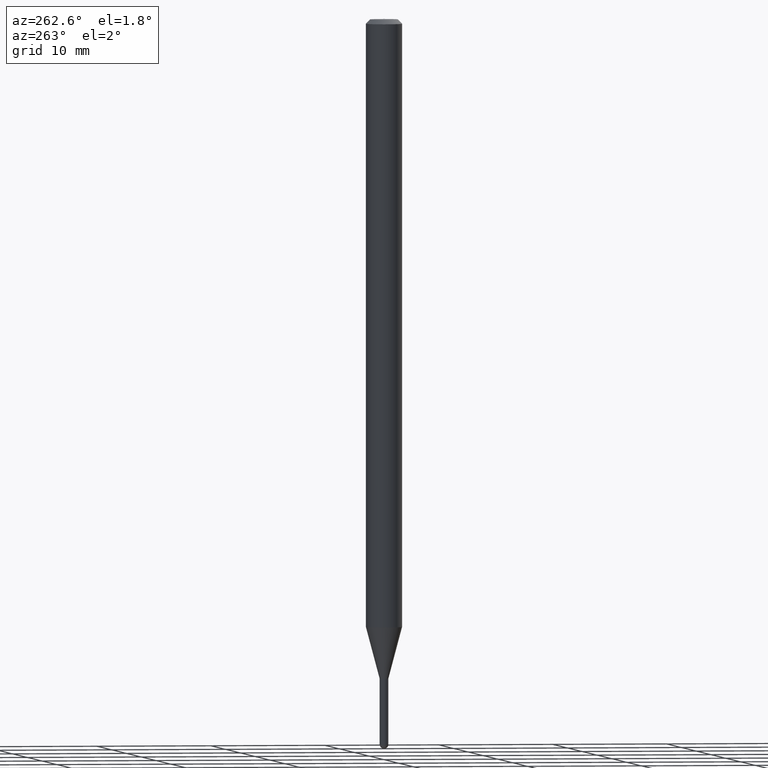
[diagram: clean part render]
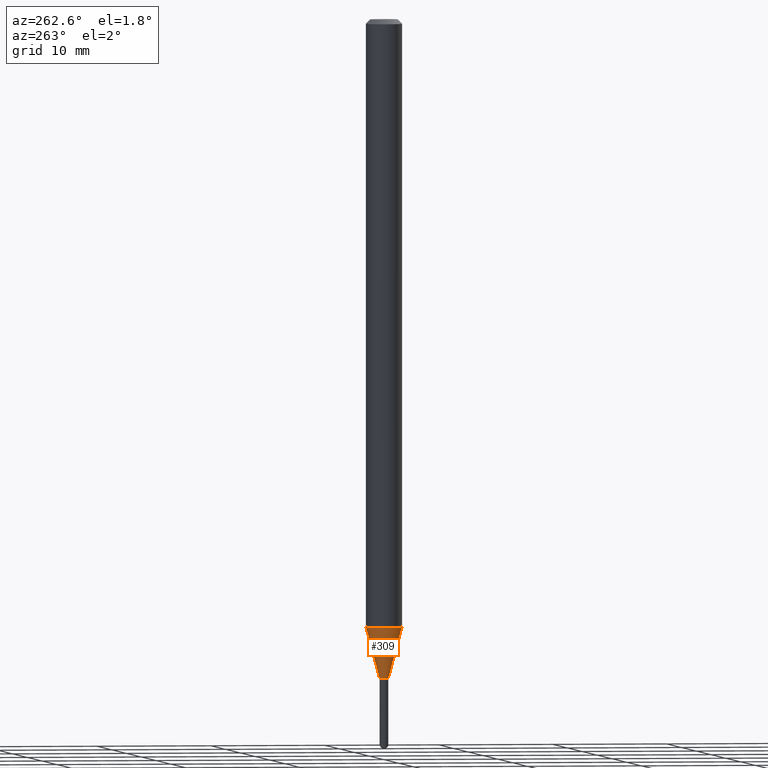
[diagram: same view with one face highlighted and labeled with its STEP entity id]
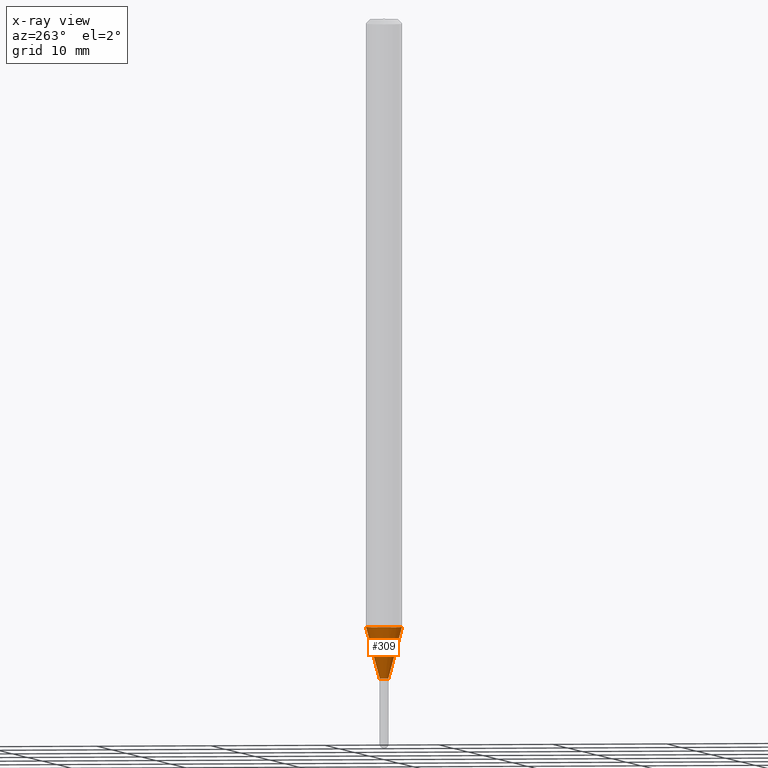
[diagram: x-ray of the same camera — body ghosted, the highlighted face saturated]
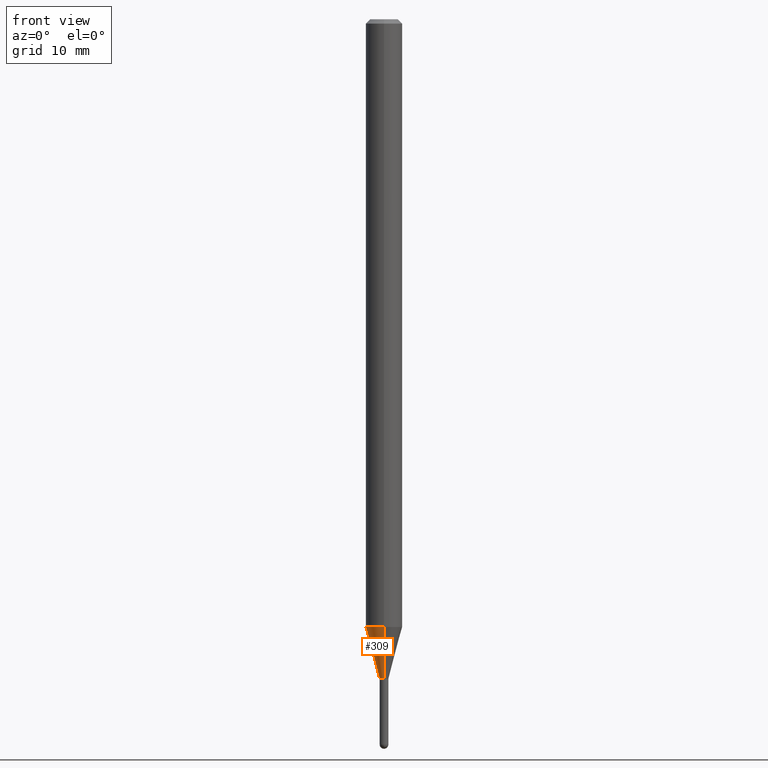
[diagram: same view with one face highlighted and labeled with its STEP entity id]
A machine part, auxiliary view. The second image highlights one B-rep face of the part: STEP entity #309.
The next image is the same camera in x-ray: the body ghosted, the highlighted face saturated — about 0% of this face is hidden behind the body in this view.
A second angle (front view) of the same face is appended — the face is thin or edge-on in the first view.
In plain terms, the highlighted conical surface has half-angle 15 deg.
Its self-contained STEP definition (entity closure, byte-faithful):
#4 = CARTESIAN_POINT ( 'NONE',  ( -4.364351673553408372E-16, -0.06250000000000728584, -2.082727586640484851 ) ) ;
#25 = VECTOR ( 'NONE', #337, 39.37007874015748854 ) ;
#33 = DIRECTION ( 'NONE',  ( -6.982962677686265922E-15, -1.000000000000000000, 4.370956789862821150E-15 ) ) ;
#34 = CIRCLE ( 'NONE', #318, 0.06250000000000000000 ) ;
#46 = DIRECTION ( 'NONE',  ( -2.445532086721361648E-29, 3.491390717513566819E-15, 1.000000000000000000 ) ) ;
#70 = VECTOR ( 'NONE', #265, 39.37007874015748143 ) ;
#86 = FACE_OUTER_BOUND ( 'NONE', #222, .T. ) ;
#107 = AXIS2_PLACEMENT_3D ( 'NONE', #202, #161, #353 ) ;
#108 = LINE ( 'NONE', #490, #70 ) ;
#116 = CARTESIAN_POINT ( 'NONE',  ( -1.047444401652401091E-16, -0.01500000000000809020, -2.260000000000000231 ) ) ;
#161 = DIRECTION ( 'NONE',  ( -2.445532086721361648E-29, 3.491390717513566819E-15, 1.000000000000000000 ) ) ;
#174 = LINE ( 'NONE', #453, #25 ) ;
#179 = EDGE_CURVE ( 'NONE', #422, #503, #174, .T. ) ;
#184 = EDGE_CURVE ( 'NONE', #298, #193, #108, .T. ) ;
#193 = VERTEX_POINT ( 'NONE', #501 ) ;
#202 = CARTESIAN_POINT ( 'NONE',  ( 5.526902515990277431E-29, -7.890543021580662754E-15, -2.260000000000000231 ) ) ;
#207 = CARTESIAN_POINT ( 'NONE',  ( 2.753353101070928077E-16, 0.01499999999999231289, -2.260000000000000231 ) ) ;
#220 = AXIS2_PLACEMENT_3D ( 'NONE', #236, #46, #361 ) ;
#222 = EDGE_LOOP ( 'NONE', ( #498, #241, #289, #486 ) ) ;
#236 = CARTESIAN_POINT ( 'NONE',  ( 5.526902515990277431E-29, -7.890543021580662754E-15, -2.260000000000000231 ) ) ;
#241 = ORIENTED_EDGE ( 'NONE', *, *, #344, .T. ) ;
#263 = CIRCLE ( 'NONE', #107, 0.01500000000000020067 ) ;
#265 = DIRECTION ( 'NONE',  ( 1.839019923739649619E-15, 0.2588190451025318972, 0.9659258262890653146 ) ) ;
#278 = DIRECTION ( 'NONE',  ( -2.445532086721361648E-29, 3.491390717513566819E-15, 1.000000000000000000 ) ) ;
#281 = CONICAL_SURFACE ( 'NONE', #220, 0.01500000000000020067, 0.2617993877991574569 ) ;
#289 = ORIENTED_EDGE ( 'NONE', *, *, #179, .T. ) ;
#298 = VERTEX_POINT ( 'NONE', #207 ) ;
#309 = ADVANCED_FACE ( 'NONE', ( #86 ), #281, .T. ) ;
#318 = AXIS2_PLACEMENT_3D ( 'NONE', #386, #278, #33 ) ;
#337 = DIRECTION ( 'NONE',  ( -1.807323732225378654E-15, -0.2588190451025251249, 0.9659258262890670910 ) ) ;
#344 = EDGE_CURVE ( 'NONE', #298, #422, #263, .T. ) ;
#353 = DIRECTION ( 'NONE',  ( -6.982962677686265922E-15, -1.000000000000000000, 0.000000000000000000 ) ) ;
#361 = DIRECTION ( 'NONE',  ( -6.982962677686265922E-15, -1.000000000000000000, 0.000000000000000000 ) ) ;
#386 = CARTESIAN_POINT ( 'NONE',  ( 5.093377141029050254E-29, -7.271615763106022658E-15, -2.082727586640484851 ) ) ;
#393 = EDGE_CURVE ( 'NONE', #193, #503, #34, .T. ) ;
#422 = VERTEX_POINT ( 'NONE', #116 ) ;
#453 = CARTESIAN_POINT ( 'NONE',  ( -1.047444401652401091E-16, -0.01500000000000809020, -2.260000000000000231 ) ) ;
#486 = ORIENTED_EDGE ( 'NONE', *, *, #393, .F. ) ;
#490 = CARTESIAN_POINT ( 'NONE',  ( 1.065814103640717110E-16, 0.01499999999999231115, -2.260000000000000231 ) ) ;
#498 = ORIENTED_EDGE ( 'NONE', *, *, #184, .F. ) ;
#501 = CARTESIAN_POINT ( 'NONE',  ( 4.440892098501133005E-16, 0.06249999999999271416, -2.082727586640485296 ) ) ;
#503 = VERTEX_POINT ( 'NONE', #4 ) ;